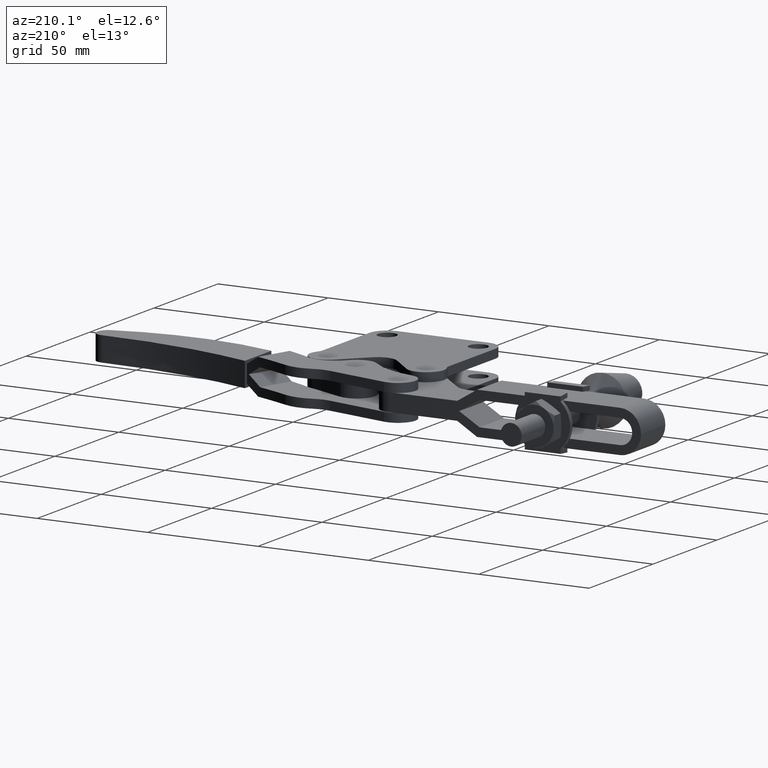
[diagram: clean part render]
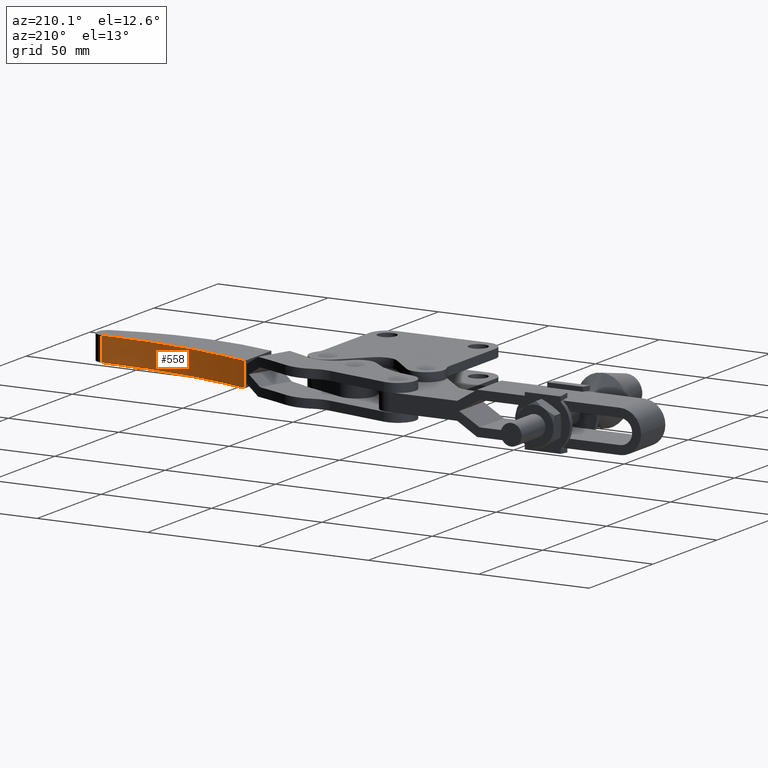
[diagram: same view with one face highlighted and labeled with its STEP entity id]
A machine part, auxiliary view. The second image highlights one B-rep face of the part: STEP entity #558.
In plain terms, the highlighted face is a freeform B-spline surface patch.
Its self-contained STEP definition (entity closure, byte-faithful):
#238 = CARTESIAN_POINT ( 'NONE',  ( 94.08862743237300200, 37.00351884267903600, -8.399999999998893700 ) ) ;
#297 = CARTESIAN_POINT ( 'NONE',  ( 50.58685581025629600, 40.24673611589901900, -9.499999999999721100 ) ) ;
#347 = EDGE_CURVE ( 'NONE', #4814, #7069, #9580, .T. ) ;
#363 = CARTESIAN_POINT ( 'NONE',  ( 22.61764969187313700, 48.71022459943880300, -7.666666673493495000 ) ) ;
#443 = CARTESIAN_POINT ( 'NONE',  ( 22.61765067861182400, 48.70981663228461400, 1.499999977681685200 ) ) ;
#558 = ADVANCED_FACE ( 'NONE', ( #7665 ), #6261, .T. ) ;
#645 = CARTESIAN_POINT ( 'NONE',  ( 36.07109979522153500, 43.92417188665979900, -0.6339999999998872100 ) ) ;
#670 = CARTESIAN_POINT ( 'NONE',  ( 65.02093730882498300, 37.86375368811032900, -2.877999999999402800 ) ) ;
#704 = CARTESIAN_POINT ( 'NONE',  ( 94.82447143218477900, 37.01548470094434900, -5.121999999998905700 ) ) ;
#729 = ORIENTED_EDGE ( 'NONE', *, *, #4179, .T. ) ;
#762 = EDGE_CURVE ( 'NONE', #6602, #7664, #8457, .T. ) ;
#1023 = CARTESIAN_POINT ( 'NONE',  ( 22.61765067860474300, 48.70981663193917700, -9.499999977619630400 ) ) ;
#1096 = CARTESIAN_POINT ( 'NONE',  ( 22.61764938079904800, 48.71035321381177100, -4.000000000000246900 ) ) ;
#1378 = CARTESIAN_POINT ( 'NONE',  ( 36.07135661185652300, 43.92573985191317100, -5.122000000000021200 ) ) ;
#1411 = CARTESIAN_POINT ( 'NONE',  ( 65.02064933385784700, 37.86199548914223800, -7.365999999999542200 ) ) ;
#1428 = CARTESIAN_POINT ( 'NONE',  ( 94.08862832723765700, 37.00352430617692800, 1.499999999876122200 ) ) ;
#1447 = CARTESIAN_POINT ( 'NONE',  ( 94.82429213603113300, 37.01439002832209000, -9.609999999999045500 ) ) ;
#1841 = CARTESIAN_POINT ( 'NONE',  ( 22.61764969187247600, 48.71022459966715000, -0.3333333264236187400 ) ) ;
#2121 = CARTESIAN_POINT ( 'NONE',  ( 36.07067167393210400, 43.92155803998803500, -9.610000000000162900 ) ) ;
#2153 = CARTESIAN_POINT ( 'NONE',  ( 79.81074130676482500, 36.75604122583442300, 1.610000000001008600 ) ) ;
#2859 = CARTESIAN_POINT ( 'NONE',  ( 50.44032841785639200, 40.24868348891467200, -0.6339999999996157600 ) ) ;
#2891 = CARTESIAN_POINT ( 'NONE',  ( 79.81150218223356800, 36.76068666594592600, -2.877999999999124400 ) ) ;
#2932 = B_SPLINE_CURVE_WITH_KNOTS ( 'NONE', 5,
 ( #3974, #6187, #4715, #297, #5473, #1023 ),
 .UNSPECIFIED., .F., .F.,
 ( 6, 6 ),
 ( 1.110764993427085300E-016, 0.07277428358943997800 ),
 .UNSPECIFIED. ) ;
#3242 = CARTESIAN_POINT ( 'NONE',  ( 22.61765067861182400, 48.70981663228461400, 1.499999977681685200 ) ) ;
#3383 = CARTESIAN_POINT ( 'NONE',  ( 94.08862832723765700, 37.00352430617692800, 1.499999999876122200 ) ) ;
#3533 = CARTESIAN_POINT ( 'NONE',  ( 21.92390460133217200, 48.95526056125981300, 1.609999999999911900 ) ) ;
#3587 = CARTESIAN_POINT ( 'NONE',  ( 21.92397400501819100, 48.95568429770518300, -2.878000000000220800 ) ) ;
#3619 = CARTESIAN_POINT ( 'NONE',  ( 50.44061651122282100, 40.25044241075549700, -5.121999999999749400 ) ) ;
#3652 = CARTESIAN_POINT ( 'NONE',  ( 79.81122130970588600, 36.75897183012772000, -7.365999999999262500 ) ) ;
#3921 = CARTESIAN_POINT ( 'NONE',  ( 94.08872468450429900, 37.00411260469467600, -5.099999999998888500 ) ) ;
#3974 = CARTESIAN_POINT ( 'NONE',  ( 94.08862832718712400, 37.00352430664058500, -9.499999999998898700 ) ) ;
#4013 = VERTEX_POINT ( 'NONE', #6697 ) ;
#4119 = CARTESIAN_POINT ( 'NONE',  ( 64.88127984249584300, 37.90677618376233200, 1.500000000000564700 ) ) ;
#4179 = EDGE_CURVE ( 'NONE', #4013, #4814, #2932, .T. ) ;
#4224 = ORIENTED_EDGE ( 'NONE', *, *, #347, .T. ) ;
#4333 = CARTESIAN_POINT ( 'NONE',  ( 21.92396640978196100, 48.95563792583890700, -7.366000000000359400 ) ) ;
#4363 = CARTESIAN_POINT ( 'NONE',  ( 50.43971138012601300, 40.24491623403285000, -9.609999999999889300 ) ) ;
#4399 = CARTESIAN_POINT ( 'NONE',  ( 94.82429213584106300, 37.01439002716294600, 1.610000000001294400 ) ) ;
#4666 = CARTESIAN_POINT ( 'NONE',  ( 94.08867717457449900, 37.00382253812927000, -7.299999999998891400 ) ) ;
#4715 = CARTESIAN_POINT ( 'NONE',  ( 64.88127984611719500, 37.90677620651587200, -9.499999999999449300 ) ) ;
#4788 = CARTESIAN_POINT ( 'NONE',  ( 22.61764938079922200, 48.71035321375509900, -5.833333327138071800 ) ) ;
#4814 = VERTEX_POINT ( 'NONE', #8480 ) ;
#4853 = CARTESIAN_POINT ( 'NONE',  ( 36.49559054828366600, 43.82705920699923800, 1.500000000000026600 ) ) ;
#5058 = CARTESIAN_POINT ( 'NONE',  ( 36.07067167247787900, 43.92155803111089100, 1.610000000000180600 ) ) ;
#5090 = CARTESIAN_POINT ( 'NONE',  ( 65.02064933134558100, 37.86199547380473300, -0.6339999999993373200 ) ) ;
#5132 = CARTESIAN_POINT ( 'NONE',  ( 94.82447143215577500, 37.01548470076753000, -2.877999999998838800 ) ) ;
#5411 = CARTESIAN_POINT ( 'NONE',  ( 94.08862832718712400, 37.00352430664058500, -9.499999999998898700 ) ) ;
#5473 = CARTESIAN_POINT ( 'NONE',  ( 36.49559054940129200, 43.82705921383596600, -9.499999999999984000 ) ) ;
#5819 = CARTESIAN_POINT ( 'NONE',  ( 36.07135661156857500, 43.92573985015547300, -2.877999999999952600 ) ) ;
#5851 = CARTESIAN_POINT ( 'NONE',  ( 65.02093730965337700, 37.86375369316767300, -5.121999999999471400 ) ) ;
#5885 = CARTESIAN_POINT ( 'NONE',  ( 94.82442654128794900, 37.01521062459185900, -7.365999999998976500 ) ) ;
#6118 = B_SPLINE_CURVE_WITH_KNOTS ( 'NONE', 5,
 ( #3383, #6331, #4119, #9298, #4853, #443 ),
 .UNSPECIFIED., .F., .F.,
 ( 6, 6 ),
 ( 0.0000000000000000000, 0.07277428358872180300 ),
 .UNSPECIFIED. ) ;
#6187 = CARTESIAN_POINT ( 'NONE',  ( 79.37803966652069200, 36.80215480941414800, -9.499999999999172200 ) ) ;
#6248 = ORIENTED_EDGE ( 'NONE', *, *, #6605, .F. ) ;
#6261 = B_SPLINE_SURFACE_WITH_KNOTS ( 'NONE', 5, 5, ( 
 ( #3533, #7999, #3587, #8741, #4333, #9512 ),
 ( #5058, #645, #5819, #1378, #6566, #2121 ),
 ( #7303, #2859, #8034, #3619, #8769, #4363 ),
 ( #9550, #5090, #670, #5851, #1411, #6597 ),
 ( #2153, #7338, #2891, #8060, #3652, #8814 ),
 ( #4399, #9578, #5132, #704, #5885, #1447 ) ),
 .UNSPECIFIED., .F., .F., .F.,
 ( 6, 6 ),
 ( 6, 6 ),
 ( -28.01344242629252400, 45.85841210244899500 ),
 ( -5.610000000000172600, 5.610000000000168200 ),
 .UNSPECIFIED. ) ;
#6285 = CARTESIAN_POINT ( 'NONE',  ( 22.61764938079887300, 48.71035321386844400, -2.166666672820735300 ) ) ;
#6331 = CARTESIAN_POINT ( 'NONE',  ( 79.37803966708975200, 36.80215481192972500, 1.500000000000838200 ) ) ;
#6378 = CARTESIAN_POINT ( 'NONE',  ( 94.08871309118799800, 37.00404182299835300, -3.999999999998887100 ) ) ;
#6545 = EDGE_LOOP ( 'NONE', ( #8546, #9153, #729, #4224, #6248 ) ) ;
#6566 = CARTESIAN_POINT ( 'NONE',  ( 36.07109979609454300, 43.92417189198890500, -7.366000000000092000 ) ) ;
#6597 = CARTESIAN_POINT ( 'NONE',  ( 65.02003744710761200, 37.85825968299474200, -9.609999999999612200 ) ) ;
#6602 = VERTEX_POINT ( 'NONE', #9268 ) ;
#6605 = EDGE_CURVE ( 'NONE', #7664, #7069, #6118, .T. ) ;
#6697 = CARTESIAN_POINT ( 'NONE',  ( 94.08862832718712400, 37.00352430664058500, -9.499999999998898700 ) ) ;
#6807 = CARTESIAN_POINT ( 'NONE',  ( 94.08870149788568000, 37.00397104138748700, -0.3333333333322139300 ) ) ;
#6984 = CARTESIAN_POINT ( 'NONE',  ( 94.08862832723765700, 37.00352430617692800, 1.499999999876122200 ) ) ;
#7018 = CARTESIAN_POINT ( 'NONE',  ( 22.61765067861182400, 48.70981663228461400, 1.499999977681685200 ) ) ;
#7025 = EDGE_CURVE ( 'NONE', #6602, #4013, #9333, .T. ) ;
#7069 = VERTEX_POINT ( 'NONE', #3242 ) ;
#7303 = CARTESIAN_POINT ( 'NONE',  ( 50.43971138660627000, 40.24491627359854100, 1.610000000000451700 ) ) ;
#7338 = CARTESIAN_POINT ( 'NONE',  ( 79.81122131006395600, 36.75897183231482800, -0.6339999999990588700 ) ) ;
#7664 = VERTEX_POINT ( 'NONE', #6984 ) ;
#7665 = FACE_OUTER_BOUND ( 'NONE', #6545, .T. ) ;
#7999 = CARTESIAN_POINT ( 'NONE',  ( 21.92396640985514000, 48.95563792628658500, -0.6340000000001553300 ) ) ;
#8034 = CARTESIAN_POINT ( 'NONE',  ( 50.44061651251213600, 40.25044241862737200, -2.877999999999681300 ) ) ;
#8060 = CARTESIAN_POINT ( 'NONE',  ( 79.81150218212198400, 36.76068666526443000, -5.121999999999192500 ) ) ;
#8287 = CARTESIAN_POINT ( 'NONE',  ( 94.08870149788570800, 37.00397104138748700, -2.166666666665551000 ) ) ;
#8344 = CARTESIAN_POINT ( 'NONE',  ( 94.08871309118799800, 37.00404182299835300, -3.999999999998887100 ) ) ;
#8457 = B_SPLINE_CURVE_WITH_KNOTS ( 'NONE', 3,
 ( #6378, #8287, #6807, #1428 ),
 .UNSPECIFIED., .F., .F.,
 ( 4, 4 ),
 ( 0.0000000000000000000, 1.000000000000000000 ),
 .UNSPECIFIED. ) ;
#8480 = CARTESIAN_POINT ( 'NONE',  ( 22.61765067860474300, 48.70981663193917700, -9.499999977619630400 ) ) ;
#8546 = ORIENTED_EDGE ( 'NONE', *, *, #762, .F. ) ;
#8741 = CARTESIAN_POINT ( 'NONE',  ( 21.92397400499478300, 48.95568429756205800, -5.122000000000288500 ) ) ;
#8769 = CARTESIAN_POINT ( 'NONE',  ( 50.44032841396808900, 40.24868346517428100, -7.365999999999819400 ) ) ;
#8814 = CARTESIAN_POINT ( 'NONE',  ( 79.81074130615719800, 36.75604122212305900, -9.609999999999335100 ) ) ;
#9082 = CARTESIAN_POINT ( 'NONE',  ( 94.08870884786546200, 37.00401591586653900, -6.199999999998891700 ) ) ;
#9153 = ORIENTED_EDGE ( 'NONE', *, *, #7025, .T. ) ;
#9216 = CARTESIAN_POINT ( 'NONE',  ( 22.61765067860474300, 48.70981663193917700, -9.499999977619630400 ) ) ;
#9268 = CARTESIAN_POINT ( 'NONE',  ( 94.08871309118799800, 37.00404182299835300, -3.999999999998887100 ) ) ;
#9298 = CARTESIAN_POINT ( 'NONE',  ( 50.58685581621619300, 40.24673615195781200, 1.500000000000292400 ) ) ;
#9333 = B_SPLINE_CURVE_WITH_KNOTS ( 'NONE', 5,
 ( #8344, #3921, #9082, #4666, #238, #5411 ),
 .UNSPECIFIED., .F., .F.,
 ( 6, 6 ),
 ( 0.0000000000000000000, 1.000000000000000000 ),
 .UNSPECIFIED. ) ;
#9512 = CARTESIAN_POINT ( 'NONE',  ( 21.92390460120892500, 48.95526056050603400, -9.610000000000431100 ) ) ;
#9550 = CARTESIAN_POINT ( 'NONE',  ( 65.02003744291559400, 37.85825965740212200, 1.610000000000729700 ) ) ;
#9578 = CARTESIAN_POINT ( 'NONE',  ( 94.82442654118325700, 37.01521062395354300, -0.6339999999987735400 ) ) ;
#9580 = B_SPLINE_CURVE_WITH_KNOTS ( 'NONE', 3,
 ( #9216, #363, #4788, #1096, #6285, #1841, #7018 ),
 .UNSPECIFIED., .F., .F.,
 ( 4, 3, 4 ),
 ( 0.0000000000000000000, 0.005499999981413475900, 0.01099999996295201100 ),
 .UNSPECIFIED. ) ;